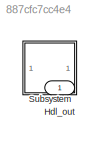
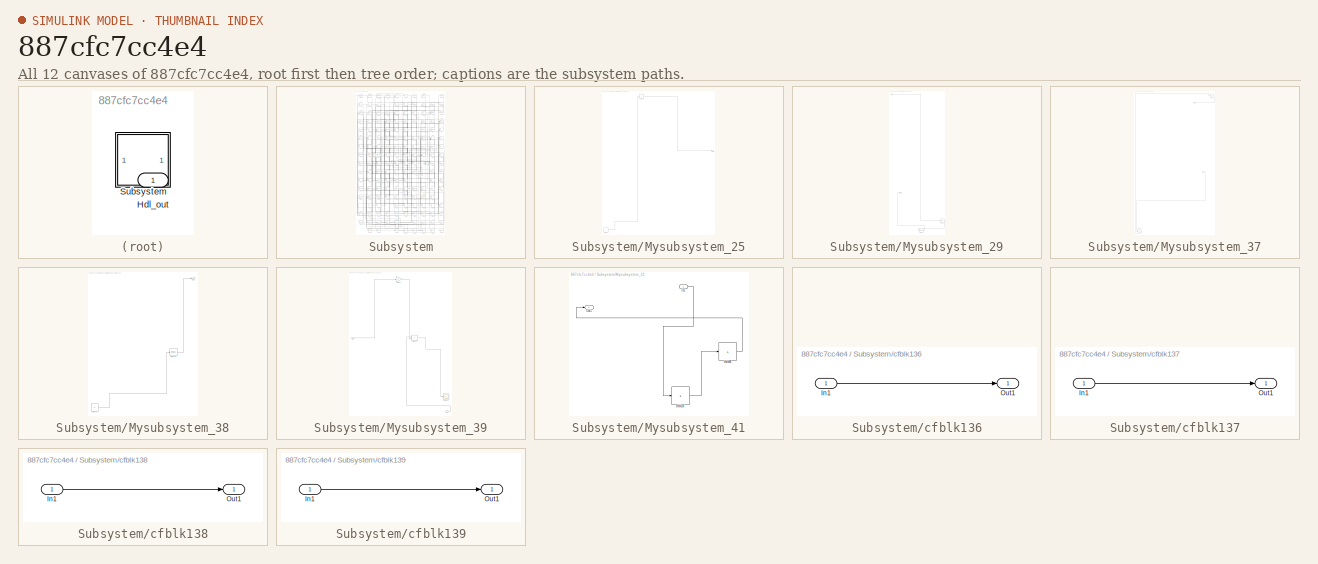
[diagram: thumbnail index - all 12 canvases of the model, root first then tree order]
MODEL slx_887cfc7cc4e4
KIND model
CONFIG AbsTol = auto
CONFIG EnableMultiTasking = off
CONFIG FixedStep = auto
CONFIG MaxStep = auto
CONFIG MinStep = auto
CONFIG RelTol = 1e-3
CONFIG SampleTimeConstraint = Unconstrained
CONFIG SolverName = VariableStepAuto
CONFIG StartTime = 0.0
CONFIG StopTime = 10.0
BLOCK [Outport] Hdl_out
  OutDataTypeStr = uint8
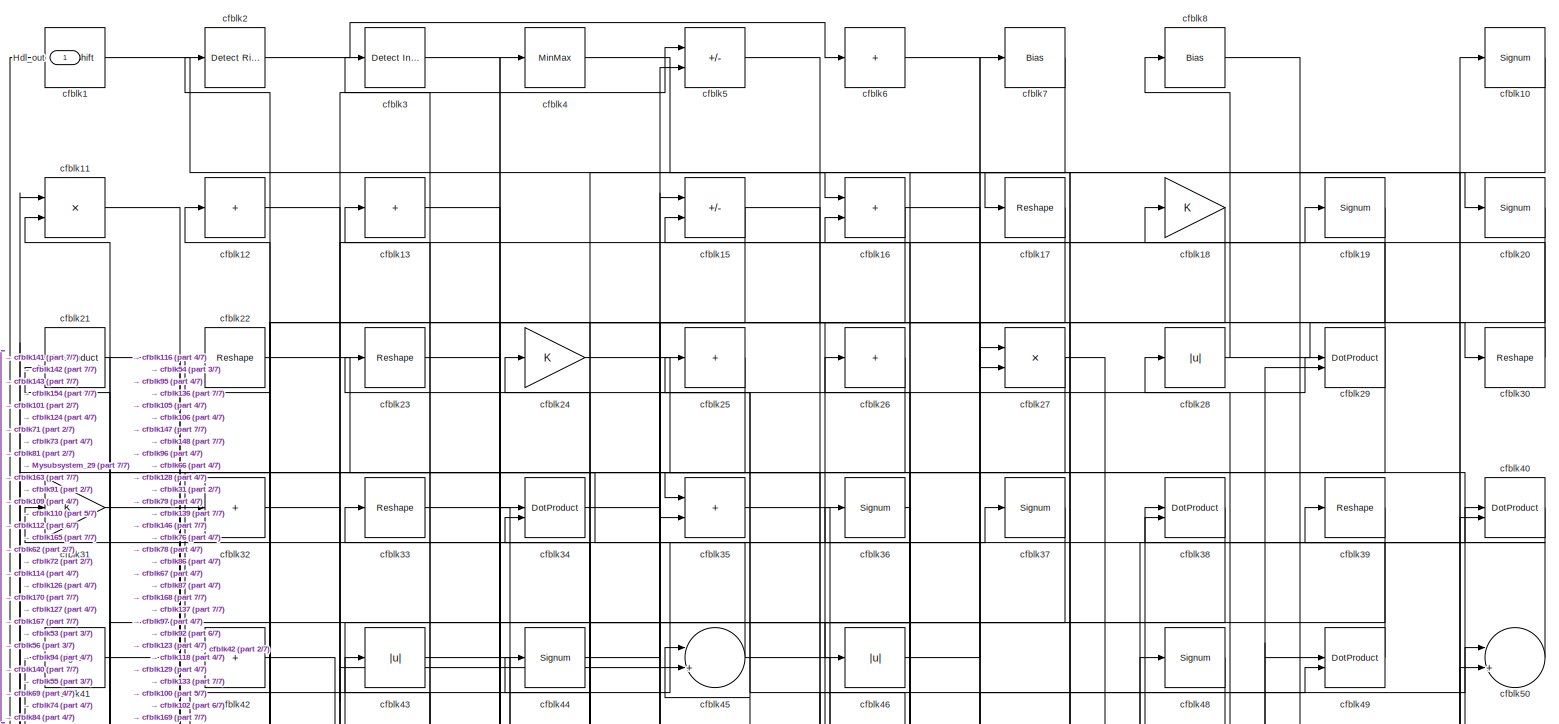
[diagram: Subsystem - part 1/7, full width, top band]
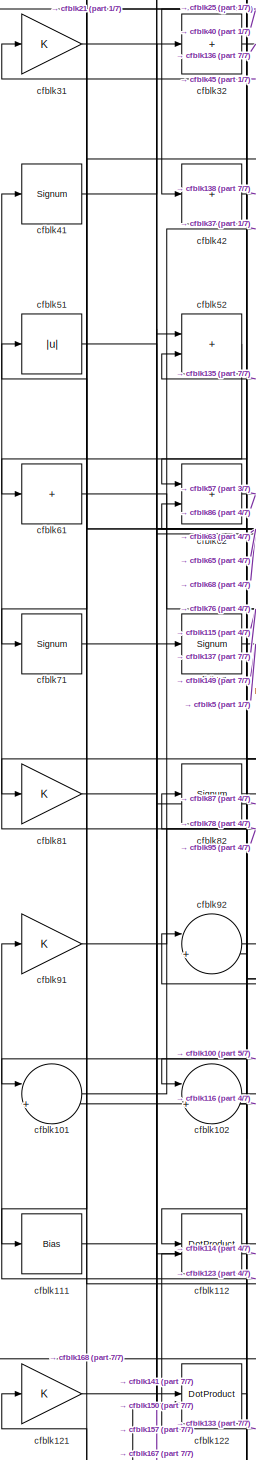
[diagram: Subsystem - part 2/7, middle left region]
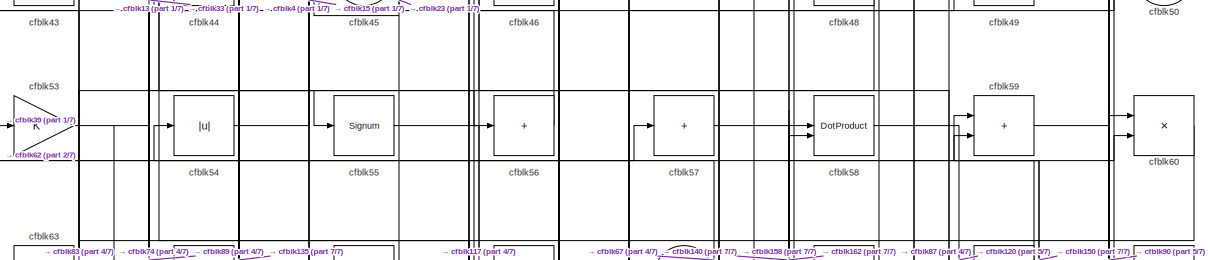
[diagram: Subsystem - part 3/7, full width, top band]
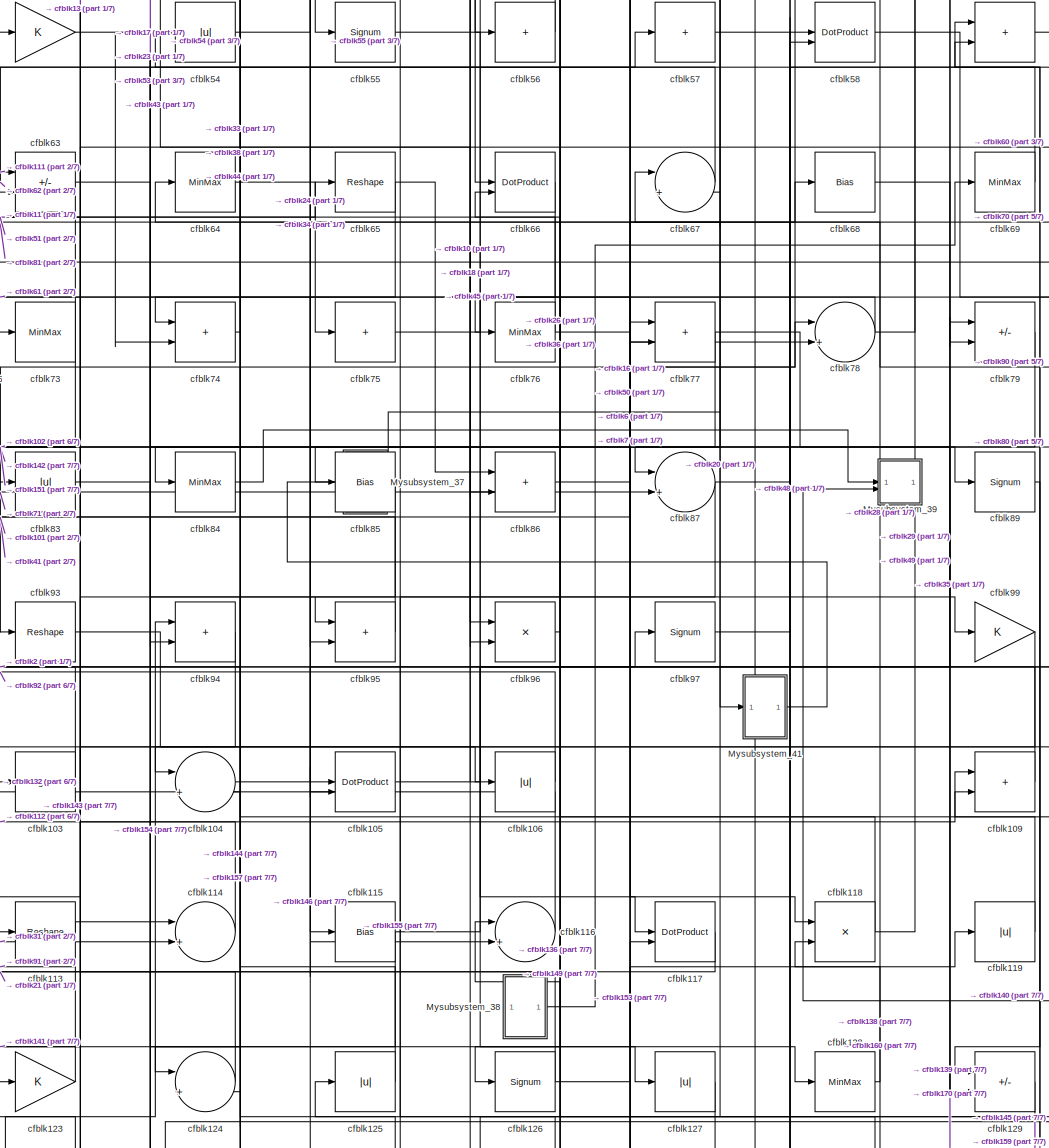
[diagram: Subsystem - part 4/7, central region]
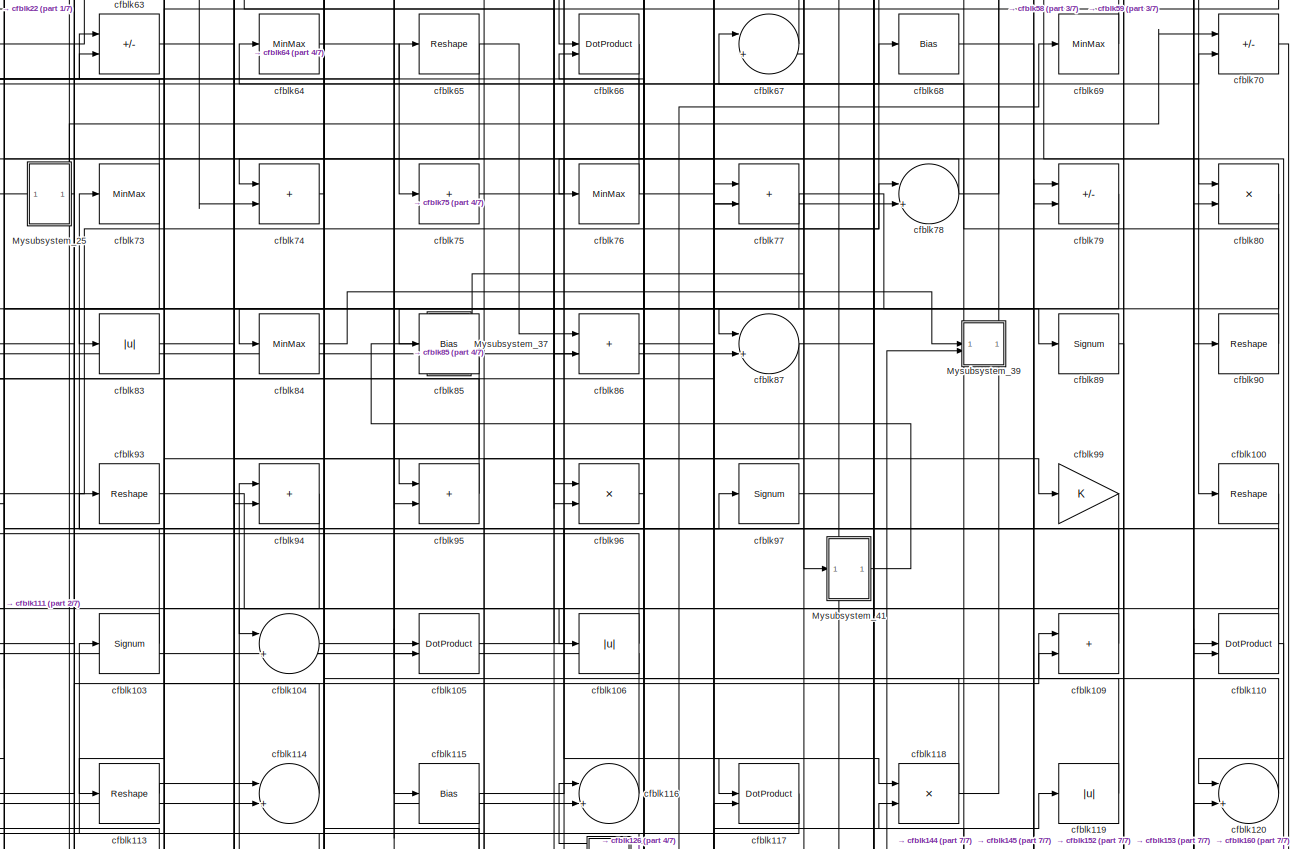
[diagram: Subsystem - part 5/7, full width, middle band]
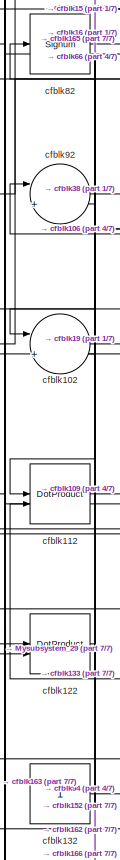
[diagram: Subsystem - part 6/7, middle left region]
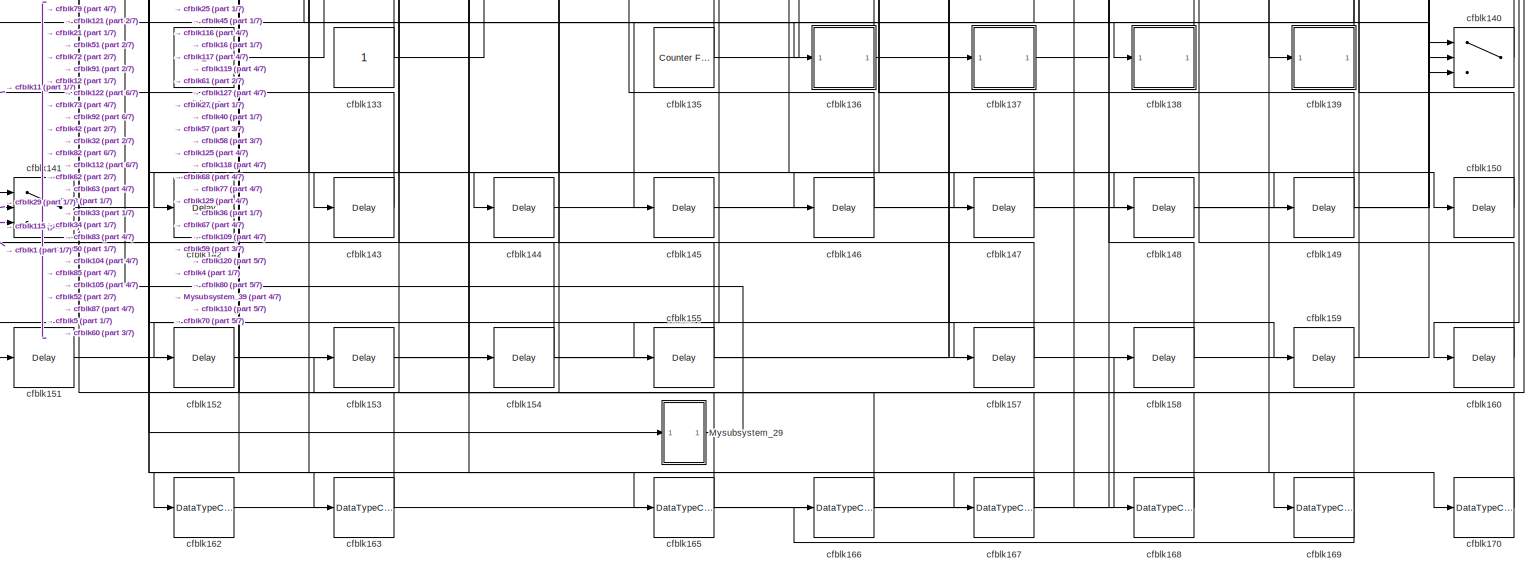
[diagram: Subsystem - part 7/7, full width, bottom band]
BLOCK [SubSystem] Subsystem
BLOCK [Outport] Subsystem/Hdl_out
  OutDataTypeStr = uint8
BLOCK [SubSystem] Subsystem/Mysubsystem_25
  RTWFcnName = Mysubsystem_25
  RTWFcnNameOpts = User specified
  RTWFileNameOpts = Use function name
  RTWSystemCode = Reusable function
  TreatAsAtomicUnit = on
BLOCK [Outport] Subsystem/Mysubsystem_25/Out1
BLOCK [Constant] Subsystem/Mysubsystem_25/cfblk131
  SampleTime = -1
BLOCK [Sum] Subsystem/Mysubsystem_25/cfblk14
  IconShape = rectangular
  Inputs = +
BLOCK [SubSystem] Subsystem/Mysubsystem_29
  RTWFcnName = Mysubsystem_29
  RTWFcnNameOpts = User specified
  RTWFileNameOpts = Use function name
  RTWSystemCode = Reusable function
  TreatAsAtomicUnit = on
BLOCK [Inport] Subsystem/Mysubsystem_29/In1
BLOCK [Outport] Subsystem/Mysubsystem_29/Out1
BLOCK [Delay] Subsystem/Mysubsystem_29/cfblk156
  InputPortMap = u0
  SampleTime = 1
BLOCK [DataTypeConversion] Subsystem/Mysubsystem_29/cfblk164
  OutDataTypeStr = uint8
  RndMeth = Floor
  SaturateOnIntegerOverflow = off
BLOCK [SubSystem] Subsystem/Mysubsystem_37
  RTWFcnName = Mysubsystem_37
  RTWFcnNameOpts = User specified
  RTWFileNameOpts = Use function name
  RTWSystemCode = Reusable function
  TreatAsAtomicUnit = on
BLOCK [Inport] Subsystem/Mysubsystem_37/In1
BLOCK [Outport] Subsystem/Mysubsystem_37/Out1
BLOCK [Delay] Subsystem/Mysubsystem_37/cfblk161
  InputPortMap = u0
  SampleTime = 1
BLOCK [Abs] Subsystem/Mysubsystem_37/cfblk9
  SaturateOnIntegerOverflow = off
BLOCK [SubSystem] Subsystem/Mysubsystem_38
  RTWFcnName = Mysubsystem_38
  RTWFcnNameOpts = User specified
  RTWFileNameOpts = Use function name
  RTWSystemCode = Reusable function
  TreatAsAtomicUnit = on
BLOCK [Outport] Subsystem/Mysubsystem_38/Out1
BLOCK [MinMax] Subsystem/Mysubsystem_38/cfblk108
BLOCK [Constant] Subsystem/Mysubsystem_38/cfblk134
  SampleTime = -1
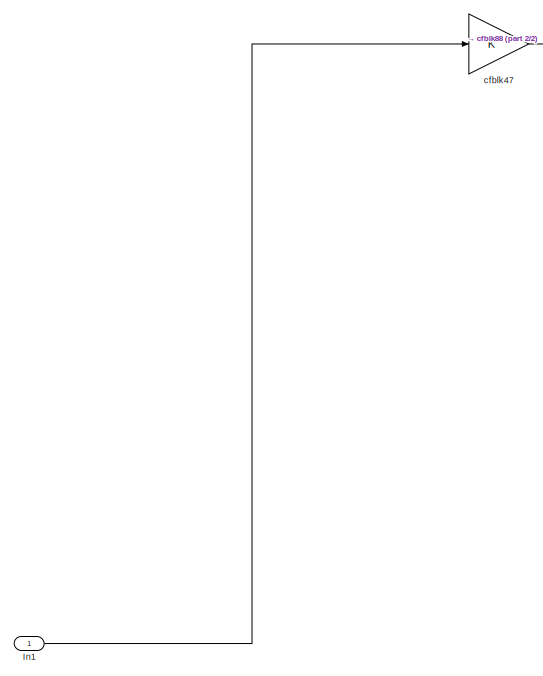
[diagram: Subsystem/Mysubsystem_39 - part 1/2, top left region]
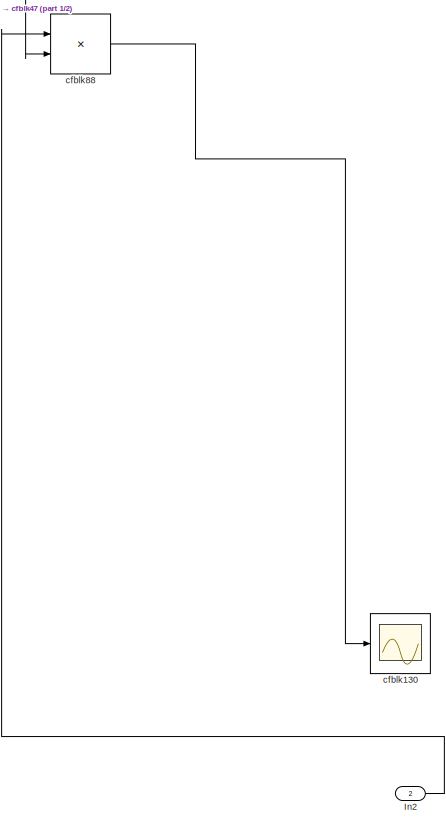
[diagram: Subsystem/Mysubsystem_39 - part 2/2, bottom right region]
BLOCK [SubSystem] Subsystem/Mysubsystem_39
  RTWFcnName = Mysubsystem_39
  RTWFcnNameOpts = User specified
  RTWFileNameOpts = Use function name
  RTWSystemCode = Reusable function
  TreatAsAtomicUnit = on
BLOCK [Inport] Subsystem/Mysubsystem_39/In1
BLOCK [Inport] Subsystem/Mysubsystem_39/In2
  Port = 2
BLOCK [Scope] Subsystem/Mysubsystem_39/cfblk130
  Floating = off
  NumInputPorts = 1
  ScopeSpecificationString = Simulink.scopes.TimeScopeBlockCfg('CurrentConfiguration', extmgr.ConfigurationSet(extmgr.Configuration('Core','General UI',true),extmgr.Configuration('Core','Source UI',true),extmgr.Configuration('Sources','WiredSimulink',true,'DataLoggingVariableName','ScopeData2','DataLoggingSaveFormat','Array','DataLoggingLimitDataPoints',true,'DataLoggingDecimation','1'),extmgr.Configuration('Visuals','Time Do...<+868ch>
BLOCK [Gain] Subsystem/Mysubsystem_39/cfblk47
BLOCK [Product] Subsystem/Mysubsystem_39/cfblk88
  Inputs = */
  RndMeth = Zero
  SaturateOnIntegerOverflow = on
BLOCK [SubSystem] Subsystem/Mysubsystem_41
  RTWFcnName = Mysubsystem_41
  RTWFcnNameOpts = User specified
  RTWFileNameOpts = Use function name
  RTWSystemCode = Reusable function
  TreatAsAtomicUnit = on
BLOCK [Inport] Subsystem/Mysubsystem_41/In1
BLOCK [Outport] Subsystem/Mysubsystem_41/Out1
BLOCK [Sum] Subsystem/Mysubsystem_41/cfblk107
  IconShape = rectangular
  Inputs = +
BLOCK [Sum] Subsystem/Mysubsystem_41/cfblk98
  IconShape = rectangular
  Inputs = +
BLOCK [ArithShift] Subsystem/cfblk1
  BitShiftNumber = 8
  InputPortMap = u0
BLOCK [Signum] Subsystem/cfblk10
BLOCK [Reshape] Subsystem/cfblk100
BLOCK [Sum] Subsystem/cfblk101
  Inputs = |++
  OutDataTypeStr = uint8
BLOCK [Sum] Subsystem/cfblk102
  Inputs = |++
  OutDataTypeStr = uint8
BLOCK [Signum] Subsystem/cfblk103
BLOCK [Sum] Subsystem/cfblk104
  Inputs = |++
  OutDataTypeStr = uint8
BLOCK [DotProduct] Subsystem/cfblk105
  OutDataTypeStr = uint8
BLOCK [Abs] Subsystem/cfblk106
  OutDataTypeStr = uint8
  SaturateOnIntegerOverflow = off
BLOCK [Sum] Subsystem/cfblk109
  IconShape = rectangular
  OutDataTypeStr = uint8
BLOCK [Product] Subsystem/cfblk11
  Inputs = */
  OutDataTypeStr = uint8
  RndMeth = Zero
  SaturateOnIntegerOverflow = on
BLOCK [DotProduct] Subsystem/cfblk110
  OutDataTypeStr = uint8
BLOCK [Bias] Subsystem/cfblk111
  Bias = 0.0
  SaturateOnIntegerOverflow = off
BLOCK [DotProduct] Subsystem/cfblk112
  OutDataTypeStr = uint8
BLOCK [Reshape] Subsystem/cfblk113
BLOCK [Sum] Subsystem/cfblk114
  Inputs = |++
  OutDataTypeStr = uint8
BLOCK [Bias] Subsystem/cfblk115
  Bias = 0.0
  SaturateOnIntegerOverflow = off
BLOCK [Sum] Subsystem/cfblk116
  Inputs = |++
  OutDataTypeStr = uint8
BLOCK [DotProduct] Subsystem/cfblk117
  OutDataTypeStr = uint8
BLOCK [Product] Subsystem/cfblk118
  Inputs = */
  OutDataTypeStr = uint8
  RndMeth = Zero
  SaturateOnIntegerOverflow = on
BLOCK [Abs] Subsystem/cfblk119
  OutDataTypeStr = uint8
  SaturateOnIntegerOverflow = off
BLOCK [Sum] Subsystem/cfblk12
  IconShape = rectangular
  Inputs = +
  OutDataTypeStr = uint8
BLOCK [Sum] Subsystem/cfblk120
  Inputs = |++
  OutDataTypeStr = uint8
BLOCK [Gain] Subsystem/cfblk121
  OutDataTypeStr = uint8
BLOCK [DotProduct] Subsystem/cfblk122
  OutDataTypeStr = uint8
BLOCK [Gain] Subsystem/cfblk123
  OutDataTypeStr = uint8
BLOCK [Sum] Subsystem/cfblk124
  Inputs = |++
  OutDataTypeStr = uint8
BLOCK [Abs] Subsystem/cfblk125
  OutDataTypeStr = uint8
  SaturateOnIntegerOverflow = off
BLOCK [Signum] Subsystem/cfblk126
BLOCK [Abs] Subsystem/cfblk127
  OutDataTypeStr = uint8
  SaturateOnIntegerOverflow = off
BLOCK [MinMax] Subsystem/cfblk128
  OutDataTypeStr = uint8
BLOCK [Sum] Subsystem/cfblk129
  IconShape = rectangular
  Inputs = +-
  OutDataTypeStr = uint8
BLOCK [Sum] Subsystem/cfblk13
  IconShape = rectangular
  Inputs = +
  OutDataTypeStr = uint8
BLOCK [Constant] Subsystem/cfblk132
  OutDataTypeStr = uint8
  SampleTime = -1
BLOCK [Constant] Subsystem/cfblk133
  OutDataTypeStr = uint8
  SampleTime = -1
BLOCK [Reference] Subsystem/cfblk135  REF=hdlsllib/Sources/Counter
Free-Running
  SourceBlock = hdlsllib/Sources/Counter\nFree-Running
  SourceType = Counter Free-Running
BLOCK [SubSystem] Subsystem/cfblk136
  LibrarySourceBlock = hdlsllib/Ports &\nSubsystems/Subsystem
BLOCK [Inport] Subsystem/cfblk136/In1
BLOCK [Outport] Subsystem/cfblk136/Out1
BLOCK [SubSystem] Subsystem/cfblk137
  LibrarySourceBlock = hdlsllib/Ports &\nSubsystems/Subsystem
BLOCK [Inport] Subsystem/cfblk137/In1
BLOCK [Outport] Subsystem/cfblk137/Out1
BLOCK [SubSystem] Subsystem/cfblk138
  LibrarySourceBlock = hdlsllib/Ports &\nSubsystems/Subsystem
BLOCK [Inport] Subsystem/cfblk138/In1
BLOCK [Outport] Subsystem/cfblk138/Out1
BLOCK [SubSystem] Subsystem/cfblk139
  LibrarySourceBlock = hdlsllib/Ports &\nSubsystems/Subsystem
BLOCK [Inport] Subsystem/cfblk139/In1
BLOCK [Outport] Subsystem/cfblk139/Out1
BLOCK [Switch] Subsystem/cfblk140
  InputSameDT = off
  OutDataTypeStr = uint8
  SaturateOnIntegerOverflow = off
BLOCK [Switch] Subsystem/cfblk141
  InputSameDT = off
  OutDataTypeStr = uint8
  SaturateOnIntegerOverflow = off
BLOCK [Delay] Subsystem/cfblk142
  InputPortMap = u0
  SampleTime = 1
BLOCK [Delay] Subsystem/cfblk143
  InputPortMap = u0
  SampleTime = 1
BLOCK [Delay] Subsystem/cfblk144
  InputPortMap = u0
  SampleTime = 1
BLOCK [Delay] Subsystem/cfblk145
  InputPortMap = u0
  SampleTime = 1
BLOCK [Delay] Subsystem/cfblk146
  InputPortMap = u0
  SampleTime = 1
BLOCK [Delay] Subsystem/cfblk147
  InputPortMap = u0
  SampleTime = 1
BLOCK [Delay] Subsystem/cfblk148
  InputPortMap = u0
  SampleTime = 1
BLOCK [Delay] Subsystem/cfblk149
  InputPortMap = u0
  SampleTime = 1
BLOCK [Sum] Subsystem/cfblk15
  IconShape = rectangular
  Inputs = +-
  OutDataTypeStr = uint8
BLOCK [Delay] Subsystem/cfblk150
  InputPortMap = u0
  SampleTime = 1
BLOCK [Delay] Subsystem/cfblk151
  InputPortMap = u0
  SampleTime = 1
BLOCK [Delay] Subsystem/cfblk152
  InputPortMap = u0
  SampleTime = 1
BLOCK [Delay] Subsystem/cfblk153
  InputPortMap = u0
  SampleTime = 1
BLOCK [Delay] Subsystem/cfblk154
  InputPortMap = u0
  SampleTime = 1
BLOCK [Delay] Subsystem/cfblk155
  InputPortMap = u0
  SampleTime = 1
BLOCK [Delay] Subsystem/cfblk157
  InputPortMap = u0
  SampleTime = 1
BLOCK [Delay] Subsystem/cfblk158
  InputPortMap = u0
  SampleTime = 1
BLOCK [Delay] Subsystem/cfblk159
  InputPortMap = u0
  SampleTime = 1
BLOCK [Sum] Subsystem/cfblk16
  IconShape = rectangular
  OutDataTypeStr = uint8
BLOCK [Delay] Subsystem/cfblk160
  InputPortMap = u0
  SampleTime = 1
BLOCK [DataTypeConversion] Subsystem/cfblk162
  OutDataTypeStr = uint8
  RndMeth = Floor
  SaturateOnIntegerOverflow = off
BLOCK [DataTypeConversion] Subsystem/cfblk163
  OutDataTypeStr = uint8
  RndMeth = Floor
  SaturateOnIntegerOverflow = off
BLOCK [DataTypeConversion] Subsystem/cfblk165
  OutDataTypeStr = uint8
  RndMeth = Floor
  SaturateOnIntegerOverflow = off
BLOCK [DataTypeConversion] Subsystem/cfblk166
  OutDataTypeStr = uint8
  RndMeth = Floor
  SaturateOnIntegerOverflow = off
BLOCK [DataTypeConversion] Subsystem/cfblk167
  OutDataTypeStr = uint8
  RndMeth = Floor
  SaturateOnIntegerOverflow = off
BLOCK [DataTypeConversion] Subsystem/cfblk168
  OutDataTypeStr = uint8
  RndMeth = Floor
  SaturateOnIntegerOverflow = off
BLOCK [DataTypeConversion] Subsystem/cfblk169
  OutDataTypeStr = uint8
  RndMeth = Floor
  SaturateOnIntegerOverflow = off
BLOCK [Reshape] Subsystem/cfblk17
BLOCK [DataTypeConversion] Subsystem/cfblk170
  OutDataTypeStr = uint8
  RndMeth = Floor
  SaturateOnIntegerOverflow = off
BLOCK [Gain] Subsystem/cfblk18
  OutDataTypeStr = uint8
BLOCK [Signum] Subsystem/cfblk19
BLOCK [Reference] Subsystem/cfblk2  REF=hdlsllib/Logic and Bit
Operations/Detect Rise
Nonnegative
  SourceBlock = hdlsllib/Logic and Bit\nOperations/Detect Rise\nNonnegative
  SourceType = Detect Rise Nonnegative
BLOCK [Signum] Subsystem/cfblk20
BLOCK [DotProduct] Subsystem/cfblk21
  OutDataTypeStr = uint8
BLOCK [Reshape] Subsystem/cfblk22
BLOCK [Reshape] Subsystem/cfblk23
BLOCK [Gain] Subsystem/cfblk24
  OutDataTypeStr = uint8
BLOCK [Sum] Subsystem/cfblk25
  IconShape = rectangular
  Inputs = +
  OutDataTypeStr = uint8
BLOCK [Sum] Subsystem/cfblk26
  IconShape = rectangular
  Inputs = +
  OutDataTypeStr = uint8
BLOCK [Product] Subsystem/cfblk27
  Inputs = */
  OutDataTypeStr = uint8
  RndMeth = Zero
  SaturateOnIntegerOverflow = on
BLOCK [Abs] Subsystem/cfblk28
  OutDataTypeStr = uint8
  SaturateOnIntegerOverflow = off
BLOCK [DotProduct] Subsystem/cfblk29
  OutDataTypeStr = uint8
BLOCK [Reference] Subsystem/cfblk3  REF=simulink/Logic and Bit
Operations/Detect
Increase
  LibrarySourceBlock = hdlsllib/Logic and Bit\nOperations/Detect\nIncrease
  SourceBlock = simulink/Logic and Bit\nOperations/Detect\nIncrease
  SourceType = Detect Increase
BLOCK [Reshape] Subsystem/cfblk30
BLOCK [Gain] Subsystem/cfblk31
  OutDataTypeStr = uint8
BLOCK [Sum] Subsystem/cfblk32
  IconShape = rectangular
  Inputs = +
  OutDataTypeStr = uint8
BLOCK [Reshape] Subsystem/cfblk33
BLOCK [DotProduct] Subsystem/cfblk34
  OutDataTypeStr = uint8
BLOCK [Sum] Subsystem/cfblk35
  IconShape = rectangular
  OutDataTypeStr = uint8
BLOCK [Signum] Subsystem/cfblk36
BLOCK [Signum] Subsystem/cfblk37
BLOCK [DotProduct] Subsystem/cfblk38
  OutDataTypeStr = uint8
BLOCK [Reshape] Subsystem/cfblk39
BLOCK [MinMax] Subsystem/cfblk4
  OutDataTypeStr = uint8
BLOCK [DotProduct] Subsystem/cfblk40
  OutDataTypeStr = uint8
BLOCK [Signum] Subsystem/cfblk41
BLOCK [Sum] Subsystem/cfblk42
  IconShape = rectangular
  Inputs = +
  OutDataTypeStr = uint8
BLOCK [Abs] Subsystem/cfblk43
  OutDataTypeStr = uint8
  SaturateOnIntegerOverflow = off
BLOCK [Signum] Subsystem/cfblk44
BLOCK [Sum] Subsystem/cfblk45
  Inputs = |++
  OutDataTypeStr = uint8
BLOCK [Abs] Subsystem/cfblk46
  OutDataTypeStr = uint8
  SaturateOnIntegerOverflow = off
BLOCK [Signum] Subsystem/cfblk48
BLOCK [DotProduct] Subsystem/cfblk49
  OutDataTypeStr = uint8
BLOCK [Sum] Subsystem/cfblk5
  IconShape = rectangular
  Inputs = +-
  OutDataTypeStr = uint8
BLOCK [Sum] Subsystem/cfblk50
  Inputs = |++
  OutDataTypeStr = uint8
BLOCK [Abs] Subsystem/cfblk51
  OutDataTypeStr = uint8
  SaturateOnIntegerOverflow = off
BLOCK [Sum] Subsystem/cfblk52
  IconShape = rectangular
  OutDataTypeStr = uint8
BLOCK [Gain] Subsystem/cfblk53
  OutDataTypeStr = uint8
BLOCK [Abs] Subsystem/cfblk54
  OutDataTypeStr = uint8
  SaturateOnIntegerOverflow = off
BLOCK [Signum] Subsystem/cfblk55
BLOCK [Sum] Subsystem/cfblk56
  IconShape = rectangular
  Inputs = +
  OutDataTypeStr = uint8
BLOCK [Sum] Subsystem/cfblk57
  IconShape = rectangular
  Inputs = +
  OutDataTypeStr = uint8
BLOCK [DotProduct] Subsystem/cfblk58
  OutDataTypeStr = uint8
BLOCK [Sum] Subsystem/cfblk59
  IconShape = rectangular
  OutDataTypeStr = uint8
BLOCK [Sum] Subsystem/cfblk6
  IconShape = rectangular
  Inputs = +
  OutDataTypeStr = uint8
BLOCK [Product] Subsystem/cfblk60
  Inputs = */
  OutDataTypeStr = uint8
  RndMeth = Zero
  SaturateOnIntegerOverflow = on
BLOCK [Sum] Subsystem/cfblk61
  IconShape = rectangular
  Inputs = +
  OutDataTypeStr = uint8
BLOCK [Sum] Subsystem/cfblk62
  IconShape = rectangular
  OutDataTypeStr = uint8
BLOCK [Sum] Subsystem/cfblk63
  IconShape = rectangular
  Inputs = +-
  OutDataTypeStr = uint8
BLOCK [MinMax] Subsystem/cfblk64
  OutDataTypeStr = uint8
BLOCK [Reshape] Subsystem/cfblk65
BLOCK [DotProduct] Subsystem/cfblk66
  OutDataTypeStr = uint8
BLOCK [Sum] Subsystem/cfblk67
  Inputs = |++
  OutDataTypeStr = uint8
BLOCK [Bias] Subsystem/cfblk68
  Bias = 0.0
  SaturateOnIntegerOverflow = off
BLOCK [MinMax] Subsystem/cfblk69
  OutDataTypeStr = uint8
BLOCK [Bias] Subsystem/cfblk7
  Bias = 0.0
  SaturateOnIntegerOverflow = off
BLOCK [Sum] Subsystem/cfblk70
  IconShape = rectangular
  Inputs = +-
  OutDataTypeStr = uint8
BLOCK [Signum] Subsystem/cfblk71
BLOCK [Signum] Subsystem/cfblk72
BLOCK [MinMax] Subsystem/cfblk73
  OutDataTypeStr = uint8
BLOCK [Sum] Subsystem/cfblk74
  IconShape = rectangular
  OutDataTypeStr = uint8
BLOCK [Sum] Subsystem/cfblk75
  IconShape = rectangular
  Inputs = +
  OutDataTypeStr = uint8
BLOCK [MinMax] Subsystem/cfblk76
  OutDataTypeStr = uint8
BLOCK [Sum] Subsystem/cfblk77
  IconShape = rectangular
  OutDataTypeStr = uint8
BLOCK [Sum] Subsystem/cfblk78
  Inputs = |++
  OutDataTypeStr = uint8
BLOCK [Sum] Subsystem/cfblk79
  IconShape = rectangular
  Inputs = +-
  OutDataTypeStr = uint8
BLOCK [Bias] Subsystem/cfblk8
  Bias = 0.0
  SaturateOnIntegerOverflow = off
BLOCK [Product] Subsystem/cfblk80
  Inputs = */
  OutDataTypeStr = uint8
  RndMeth = Zero
  SaturateOnIntegerOverflow = on
BLOCK [Gain] Subsystem/cfblk81
  OutDataTypeStr = uint8
BLOCK [Signum] Subsystem/cfblk82
BLOCK [Abs] Subsystem/cfblk83
  OutDataTypeStr = uint8
  SaturateOnIntegerOverflow = off
BLOCK [MinMax] Subsystem/cfblk84
  OutDataTypeStr = uint8
BLOCK [Bias] Subsystem/cfblk85
  Bias = 0.0
  SaturateOnIntegerOverflow = off
BLOCK [Sum] Subsystem/cfblk86
  IconShape = rectangular
  OutDataTypeStr = uint8
BLOCK [Sum] Subsystem/cfblk87
  Inputs = |++
  OutDataTypeStr = uint8
BLOCK [Signum] Subsystem/cfblk89
BLOCK [Reshape] Subsystem/cfblk90
BLOCK [Gain] Subsystem/cfblk91
  OutDataTypeStr = uint8
BLOCK [Sum] Subsystem/cfblk92
  Inputs = |++
  OutDataTypeStr = uint8
BLOCK [Reshape] Subsystem/cfblk93
BLOCK [Sum] Subsystem/cfblk94
  IconShape = rectangular
  OutDataTypeStr = uint8
BLOCK [Sum] Subsystem/cfblk95
  IconShape = rectangular
  OutDataTypeStr = uint8
BLOCK [Product] Subsystem/cfblk96
  Inputs = */
  OutDataTypeStr = uint8
  RndMeth = Zero
  SaturateOnIntegerOverflow = on
BLOCK [Signum] Subsystem/cfblk97
BLOCK [Gain] Subsystem/cfblk99
  OutDataTypeStr = uint8
LINE Subsystem/Mysubsystem_25/cfblk131:1 -> Subsystem/Mysubsystem_25/cfblk14:1
LINE Subsystem/Mysubsystem_25/cfblk14:1 -> Subsystem/Mysubsystem_25/Out1:1
LINE Subsystem/Mysubsystem_25:1 -> Subsystem/cfblk70:1
LINE Subsystem/Mysubsystem_29/In1:1 -> Subsystem/Mysubsystem_29/cfblk156:1
LINE Subsystem/Mysubsystem_29/cfblk156:1 -> Subsystem/Mysubsystem_29/cfblk164:1
LINE Subsystem/Mysubsystem_29/cfblk164:1 -> Subsystem/Mysubsystem_29/Out1:1
LINE Subsystem/Mysubsystem_29:1 -> Subsystem/cfblk122:2
LINE Subsystem/Mysubsystem_37/In1:1 -> Subsystem/Mysubsystem_37/cfblk161:1
LINE Subsystem/Mysubsystem_37/cfblk161:1 -> Subsystem/Mysubsystem_37/cfblk9:1
LINE Subsystem/Mysubsystem_37/cfblk9:1 -> Subsystem/Mysubsystem_37/Out1:1
NET Subsystem/Mysubsystem_37:1 -> Subsystem/Mysubsystem_41:1, Subsystem/cfblk74:1
LINE Subsystem/Mysubsystem_38/cfblk108:1 -> Subsystem/Mysubsystem_38/Out1:1
LINE Subsystem/Mysubsystem_38/cfblk134:1 -> Subsystem/Mysubsystem_38/cfblk108:1
LINE Subsystem/Mysubsystem_38:1 -> Subsystem/cfblk69:1
LINE Subsystem/Mysubsystem_39/In1:1 -> Subsystem/Mysubsystem_39/cfblk47:1
LINE Subsystem/Mysubsystem_39/In2:1 -> Subsystem/Mysubsystem_39/cfblk88:1
LINE Subsystem/Mysubsystem_39/cfblk47:1 -> Subsystem/Mysubsystem_39/cfblk88:2
LINE Subsystem/Mysubsystem_39/cfblk88:1 -> Subsystem/Mysubsystem_39/cfblk130:1
LINE Subsystem/Mysubsystem_41/In1:1 -> Subsystem/Mysubsystem_41/cfblk107:1
LINE Subsystem/Mysubsystem_41/cfblk107:1 -> Subsystem/Mysubsystem_41/cfblk98:1
LINE Subsystem/Mysubsystem_41/cfblk98:1 -> Subsystem/Mysubsystem_41/Out1:1
LINE Subsystem/Mysubsystem_41:1 -> Subsystem/Mysubsystem_37:1
LINE Subsystem/cfblk100:1 -> Subsystem/cfblk111:1
LINE Subsystem/cfblk101:1 -> Subsystem/cfblk78:1
LINE Subsystem/cfblk102:1 -> Subsystem/cfblk19:1
LINE Subsystem/cfblk103:1 -> Subsystem/cfblk73:1
LINE Subsystem/cfblk104:1 -> Subsystem/cfblk97:1
NET Subsystem/cfblk105:1 -> Subsystem/cfblk10:1, Subsystem/cfblk49:2
LINE Subsystem/cfblk106:1 -> Subsystem/cfblk92:1
LINE Subsystem/cfblk109:1 -> Subsystem/cfblk2:1
NET Subsystem/cfblk10:1 -> Subsystem/cfblk129:2, Subsystem/cfblk46:1, Subsystem/cfblk67:2
NET Subsystem/cfblk110:1 -> Subsystem/cfblk160:1, Subsystem/cfblk22:1
NET Subsystem/cfblk111:1 -> Subsystem/cfblk52:1, Subsystem/cfblk63:1
LINE Subsystem/cfblk112:1 -> Subsystem/cfblk109:1
LINE Subsystem/cfblk113:1 -> Subsystem/cfblk114:1
LINE Subsystem/cfblk114:1 -> Subsystem/cfblk13:1
NET Subsystem/cfblk115:1 -> Subsystem/cfblk141:3, Subsystem/cfblk77:2, Subsystem/cfblk79:1
LINE Subsystem/cfblk116:1 -> Subsystem/cfblk101:2
LINE Subsystem/cfblk117:1 -> Subsystem/cfblk103:1
NET Subsystem/cfblk118:1 -> Subsystem/cfblk33:1, Subsystem/cfblk49:1
LINE Subsystem/cfblk119:1 -> Subsystem/cfblk66:2
LINE Subsystem/cfblk11:1 -> Subsystem/cfblk163:1
LINE Subsystem/cfblk120:1 -> Subsystem/cfblk59:1
LINE Subsystem/cfblk121:1 -> Subsystem/cfblk167:1
LINE Subsystem/cfblk122:1 -> Subsystem/cfblk162:1
LINE Subsystem/cfblk123:1 -> Subsystem/cfblk91:1
LINE Subsystem/cfblk124:1 -> Subsystem/cfblk21:2
LINE Subsystem/cfblk125:1 -> Subsystem/cfblk93:1
NET Subsystem/cfblk126:1 -> Subsystem/cfblk43:1, Subsystem/cfblk70:2
LINE Subsystem/cfblk127:1 -> Subsystem/cfblk141:1
LINE Subsystem/cfblk128:1 -> Subsystem/cfblk28:1
LINE Subsystem/cfblk129:1 -> Subsystem/cfblk145:1
LINE Subsystem/cfblk12:1 -> Subsystem/cfblk45:2
LINE Subsystem/cfblk132:1 -> Subsystem/cfblk94:1
NET Subsystem/cfblk133:1 -> Subsystem/cfblk112:2, Subsystem/cfblk50:2, Subsystem/cfblk62:2
NET Subsystem/cfblk135:1 -> Subsystem/cfblk52:2, Subsystem/cfblk60:1
LINE Subsystem/cfblk136/In1:1 -> Subsystem/cfblk136/Out1:1
NET Subsystem/cfblk136:1 -> Subsystem/cfblk119:1, Subsystem/cfblk159:1, Subsystem/cfblk25:1, Subsystem/cfblk45:1
LINE Subsystem/cfblk137/In1:1 -> Subsystem/cfblk137/Out1:1
LINE Subsystem/cfblk137:1 -> Subsystem/cfblk40:1
LINE Subsystem/cfblk138/In1:1 -> Subsystem/cfblk138/Out1:1
LINE Subsystem/cfblk138:1 -> Subsystem/cfblk125:1
LINE Subsystem/cfblk139/In1:1 -> Subsystem/cfblk139/Out1:1
NET Subsystem/cfblk139:1 -> Subsystem/cfblk36:1, Subsystem/cfblk67:1
LINE Subsystem/cfblk13:1 -> Subsystem/cfblk56:1
LINE Subsystem/cfblk140:1 -> Subsystem/Mysubsystem_39:2
LINE Subsystem/cfblk141:1 -> Subsystem/cfblk72:1
LINE Subsystem/cfblk142:1 -> Subsystem/cfblk1:1
LINE Subsystem/cfblk143:1 -> Subsystem/cfblk11:1
LINE Subsystem/cfblk144:1 -> Subsystem/cfblk120:2
LINE Subsystem/cfblk145:1 -> Subsystem/cfblk80:2
LINE Subsystem/cfblk146:1 -> Subsystem/cfblk105:1
LINE Subsystem/cfblk147:1 -> Subsystem/cfblk16:2
LINE Subsystem/cfblk148:1 -> Subsystem/cfblk40:2
LINE Subsystem/cfblk149:1 -> Subsystem/cfblk116:1
LINE Subsystem/cfblk150:1 -> Subsystem/cfblk59:2
LINE Subsystem/cfblk151:1 -> Subsystem/cfblk117:2
LINE Subsystem/cfblk152:1 -> Subsystem/cfblk110:1
LINE Subsystem/cfblk153:1 -> Subsystem/cfblk77:1
LINE Subsystem/cfblk154:1 -> Subsystem/cfblk21:1
LINE Subsystem/cfblk155:1 -> Subsystem/cfblk63:2
LINE Subsystem/cfblk157:1 -> Subsystem/cfblk104:2
LINE Subsystem/cfblk158:1 -> Subsystem/cfblk58:1
LINE Subsystem/cfblk159:1 -> Subsystem/cfblk109:2
NET Subsystem/cfblk15:1 -> Subsystem/cfblk27:2, Subsystem/cfblk92:2
LINE Subsystem/cfblk160:1 -> Subsystem/cfblk118:2
LINE Subsystem/cfblk162:1 -> Subsystem/cfblk58:2
LINE Subsystem/cfblk163:1 -> Subsystem/cfblk122:1
NET Subsystem/cfblk165:1 -> Subsystem/cfblk12:1, Subsystem/cfblk158:1
LINE Subsystem/cfblk166:1 -> Subsystem/cfblk82:1
LINE Subsystem/cfblk167:1 -> Subsystem/cfblk34:1
LINE Subsystem/cfblk168:1 -> Subsystem/cfblk121:1
NET Subsystem/cfblk169:1 -> Subsystem/cfblk166:1, Subsystem/cfblk34:2
NET Subsystem/cfblk16:1 -> Subsystem/cfblk112:1, Subsystem/cfblk78:2, Subsystem/cfblk95:2
LINE Subsystem/cfblk170:1 -> Subsystem/cfblk3:1
LINE Subsystem/cfblk17:1 -> Subsystem/cfblk94:2
NET Subsystem/cfblk18:1 -> Subsystem/cfblk62:1, Subsystem/cfblk66:1
LINE Subsystem/cfblk19:1 -> Subsystem/cfblk35:2
LINE Subsystem/cfblk1:1 -> Subsystem/cfblk16:1
NET Subsystem/cfblk20:1 -> Subsystem/cfblk124:2, Subsystem/cfblk87:1
NET Subsystem/cfblk21:1 -> Subsystem/Mysubsystem_29:1, Subsystem/cfblk71:1
LINE Subsystem/cfblk22:1 -> Subsystem/cfblk100:1
LINE Subsystem/cfblk23:1 -> Subsystem/cfblk127:1
NET Subsystem/cfblk24:1 -> Subsystem/cfblk106:1, Subsystem/cfblk96:1
LINE Subsystem/cfblk25:1 -> Subsystem/cfblk81:1
LINE Subsystem/cfblk26:1 -> Subsystem/cfblk35:1
NET Subsystem/cfblk27:1 -> Subsystem/cfblk146:1, Subsystem/cfblk168:1
NET Subsystem/cfblk28:1 -> Subsystem/cfblk30:1, Subsystem/cfblk8:1
NET Subsystem/cfblk29:1 -> Subsystem/cfblk141:2, Subsystem/cfblk18:1
LINE Subsystem/cfblk2:1 -> Subsystem/cfblk6:1
LINE Subsystem/cfblk30:1 -> Subsystem/cfblk15:2
LINE Subsystem/cfblk31:1 -> Subsystem/cfblk114:2
LINE Subsystem/cfblk32:1 -> Subsystem/cfblk136:1
NET Subsystem/cfblk33:1 -> Subsystem/cfblk140:3, Subsystem/cfblk55:1
NET Subsystem/cfblk34:1 -> Subsystem/cfblk116:2, Subsystem/cfblk5:2
LINE Subsystem/cfblk35:1 -> Subsystem/cfblk79:2
LINE Subsystem/cfblk36:1 -> Subsystem/cfblk126:1
LINE Subsystem/cfblk37:1 -> Subsystem/cfblk101:1
LINE Subsystem/cfblk38:1 -> Subsystem/cfblk84:1
LINE Subsystem/cfblk39:1 -> Subsystem/cfblk53:1
LINE Subsystem/cfblk3:1 -> Subsystem/cfblk169:1
LINE Subsystem/cfblk40:1 -> Subsystem/cfblk42:1
LINE Subsystem/cfblk41:1 -> Subsystem/cfblk32:1
LINE Subsystem/cfblk42:1 -> Subsystem/cfblk138:1
LINE Subsystem/cfblk43:1 -> Subsystem/cfblk96:2
LINE Subsystem/cfblk44:1 -> Subsystem/cfblk29:1
NET Subsystem/cfblk45:1 -> Subsystem/cfblk128:1, Subsystem/cfblk31:1
LINE Subsystem/cfblk46:1 -> Subsystem/cfblk27:1
LINE Subsystem/cfblk48:1 -> Subsystem/cfblk123:1
LINE Subsystem/cfblk49:1 -> Subsystem/cfblk38:2
LINE Subsystem/cfblk4:1 -> Subsystem/cfblk140:1
LINE Subsystem/cfblk50:1 -> Subsystem/cfblk39:1
LINE Subsystem/cfblk51:1 -> Subsystem/cfblk150:1
LINE Subsystem/cfblk52:1 -> Subsystem/cfblk61:1
NET Subsystem/cfblk53:1 -> Subsystem/cfblk4:1, Subsystem/cfblk74:2, Subsystem/cfblk89:1
LINE Subsystem/cfblk54:1 -> Subsystem/cfblk15:1
LINE Subsystem/cfblk55:1 -> Subsystem/cfblk117:1
LINE Subsystem/cfblk56:1 -> Subsystem/cfblk23:1
LINE Subsystem/cfblk57:1 -> Subsystem/cfblk140:2
LINE Subsystem/cfblk58:1 -> Subsystem/cfblk120:1
LINE Subsystem/cfblk59:1 -> Subsystem/cfblk90:1
NET Subsystem/cfblk5:1 -> Subsystem/cfblk147:1, Subsystem/cfblk148:1
LINE Subsystem/cfblk60:1 -> Subsystem/cfblk83:1
NET Subsystem/cfblk61:1 -> Subsystem/cfblk115:1, Subsystem/cfblk137:1
NET Subsystem/cfblk62:1 -> Subsystem/cfblk57:1, Subsystem/cfblk86:2
NET Subsystem/cfblk63:1 -> Subsystem/cfblk95:1, Subsystem/cfblk99:1
LINE Subsystem/cfblk64:1 -> Subsystem/cfblk75:1
NET Subsystem/cfblk65:1 -> Subsystem/cfblk104:1, Subsystem/cfblk86:1
LINE Subsystem/cfblk66:1 -> Subsystem/cfblk102:1
LINE Subsystem/cfblk67:1 -> Subsystem/cfblk54:1
LINE Subsystem/cfblk68:1 -> Subsystem/cfblk170:1
LINE Subsystem/cfblk69:1 -> Subsystem/cfblk44:1
LINE Subsystem/cfblk6:1 -> Subsystem/cfblk118:1
LINE Subsystem/cfblk70:1 -> Subsystem/cfblk153:1
LINE Subsystem/cfblk71:1 -> Subsystem/cfblk87:2
NET Subsystem/cfblk72:1 -> Subsystem/cfblk149:1, Subsystem/cfblk5:1
NET Subsystem/cfblk73:1 -> Subsystem/cfblk11:2, Subsystem/cfblk142:1
LINE Subsystem/cfblk74:1 -> Subsystem/cfblk24:1
LINE Subsystem/cfblk75:1 -> Subsystem/cfblk80:1
NET Subsystem/cfblk76:1 -> Subsystem/cfblk51:1, Subsystem/cfblk7:1
NET Subsystem/cfblk77:1 -> Subsystem/cfblk102:2, Subsystem/cfblk139:1
NET Subsystem/cfblk78:1 -> Subsystem/cfblk29:2, Subsystem/cfblk76:1
LINE Subsystem/cfblk79:1 -> Subsystem/cfblk151:1
LINE Subsystem/cfblk7:1 -> Subsystem/cfblk17:1
NET Subsystem/cfblk80:1 -> Subsystem/cfblk110:2, Subsystem/cfblk85:1
NET Subsystem/cfblk81:1 -> Subsystem/cfblk65:1, Subsystem/cfblk68:1
LINE Subsystem/cfblk82:1 -> Subsystem/cfblk165:1
LINE Subsystem/cfblk83:1 -> Subsystem/cfblk154:1
LINE Subsystem/cfblk84:1 -> Subsystem/Mysubsystem_39:1
NET Subsystem/cfblk85:1 -> Subsystem/cfblk143:1, Subsystem/cfblk144:1
LINE Subsystem/cfblk86:1 -> Subsystem/cfblk50:1
NET Subsystem/cfblk87:1 -> Subsystem/cfblk155:1, Subsystem/cfblk60:2
LINE Subsystem/cfblk89:1 -> Subsystem/cfblk129:1
LINE Subsystem/cfblk8:1 -> Subsystem/cfblk20:1
LINE Subsystem/cfblk90:1 -> Subsystem/cfblk64:1
NET Subsystem/cfblk91:1 -> Subsystem/cfblk157:1, Subsystem/cfblk37:1
NET Subsystem/cfblk92:1 -> Subsystem/cfblk152:1, Subsystem/cfblk38:1
LINE Subsystem/cfblk93:1 -> Subsystem/cfblk105:2
LINE Subsystem/cfblk94:1 -> Subsystem/cfblk113:1
LINE Subsystem/cfblk95:1 -> Subsystem/cfblk41:1
LINE Subsystem/cfblk96:1 -> Subsystem/cfblk26:1
LINE Subsystem/cfblk97:1 -> Subsystem/cfblk48:1
LINE Subsystem/cfblk99:1 -> Subsystem/cfblk124:1
note: NET lines group one-source signal fan-out (src -> all destinations, sorted); 1:1 wires keep LINE
